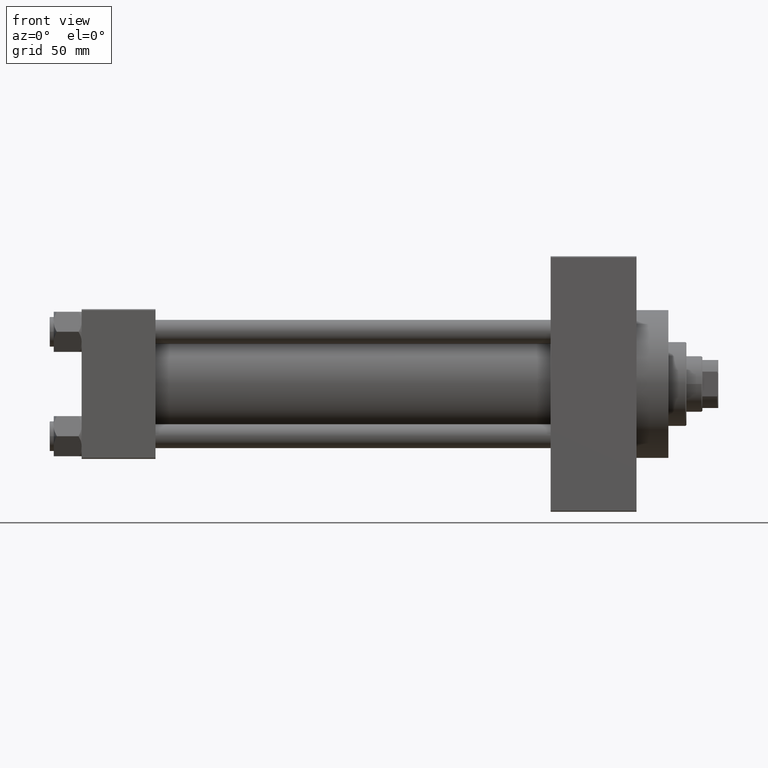
[diagram: clean part render]
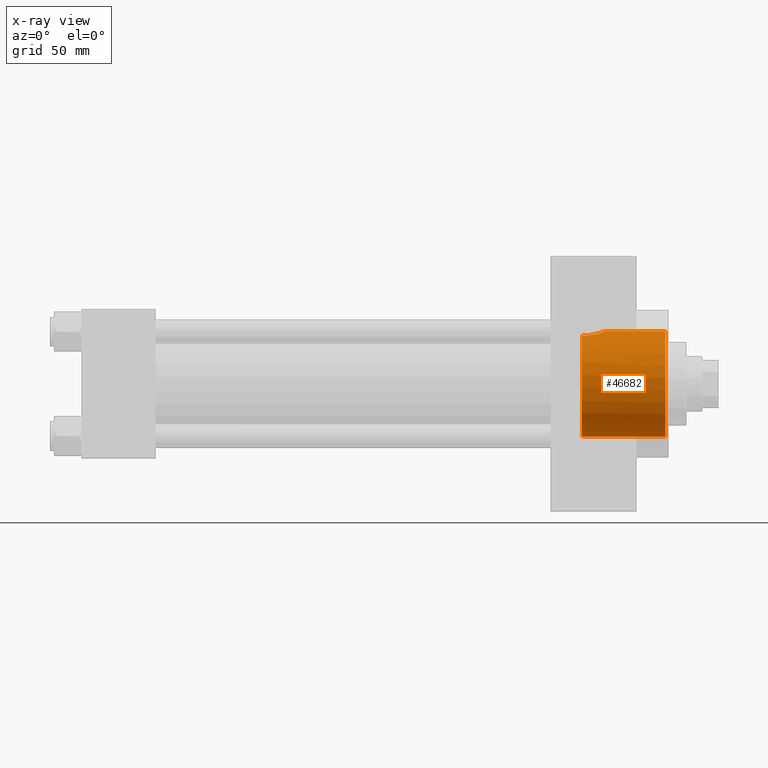
[diagram: x-ray — body ghosted, one internal face saturated and labeled with its STEP entity id]
A machine part, front view, then the same camera in x-ray: the body is ghosted and one INTERNAL B-rep face — a face not visible from any outside direction — is saturated and labeled: STEP entity #46682.
In plain terms, the highlighted cylindrical surface (partial cylindrical patch) has radius 26.5 mm, axis along (1, 0, 0).
Its self-contained STEP definition (entity closure, byte-faithful):
#172 = CARTESIAN_POINT ( 'NONE',  ( 261.6993435614956525, -3.985990130492275796, 26.20070574291655063 ) ) ;
#726 = EDGE_CURVE ( 'NONE', #26368, #26774, #10767, .T. ) ;
#742 = EDGE_CURVE ( 'NONE', #25491, #26368, #32243, .T. ) ;
#1116 = CARTESIAN_POINT ( 'NONE',  ( 253.7216423275558839, -10.36418010715237337, 24.38933169417625635 ) ) ;
#1570 = CARTESIAN_POINT ( 'NONE',  ( 250.7400000000000091, -10.40398000767014075, 24.37226292324945831 ) ) ;
#2968 = ORIENTED_EDGE ( 'NONE', *, *, #16962, .F. ) ;
#3252 = DIRECTION ( 'NONE',  ( 1.000000000000000000, 0.000000000000000000, 0.000000000000000000 ) ) ;
#3995 = CARTESIAN_POINT ( 'NONE',  ( 257.4947120380322758, -8.931495953537138988, 24.95025484238639635 ) ) ;
#4715 = CARTESIAN_POINT ( 'NONE',  ( 258.6874981071936190, -8.077221093107560534, 25.24030799844106809 ) ) ;
#4957 = CARTESIAN_POINT ( 'NONE',  ( 259.9981355541607400, -6.811571481472472378, 25.61680511670814653 ) ) ;
#6852 = CARTESIAN_POINT ( 'NONE',  ( 250.7400000000000091, 3.245314017740486554E-15, 26.50000000000000355 ) ) ;
#6888 = CARTESIAN_POINT ( 'NONE',  ( 262.1654842721633258, -2.575241489874368739, 26.37710048711162614 ) ) ;
#7043 = EDGE_LOOP ( 'NONE', ( #2968, #17547, #29726, #27399, #15140 ) ) ;
#7130 = DIRECTION ( 'NONE',  ( 1.000000000000000000, -0.000000000000000000, -0.000000000000000000 ) ) ;
#7210 = LINE ( 'NONE', #29475, #40919 ) ;
#7596 = CARTESIAN_POINT ( 'NONE',  ( 254.4459359432478323, -10.21777125531390595, 24.45211332338676868 ) ) ;
#8315 = CARTESIAN_POINT ( 'NONE',  ( 260.6508763872861323, -5.926808359427492512, 25.83050513016099714 ) ) ;
#8552 = CARTESIAN_POINT ( 'NONE',  ( 256.5335921408432682, -9.455792512420348572, 24.75606841526505875 ) ) ;
#8804 = CIRCLE ( 'NONE', #24858, 26.50000000000000355 ) ;
#10499 = DIRECTION ( 'NONE',  ( 0.000000000000000000, 0.000000000000000000, -1.000000000000000000 ) ) ;
#10767 = CIRCLE ( 'NONE', #46045, 26.50000000000000355 ) ;
#11202 = CARTESIAN_POINT ( 'NONE',  ( 250.7400000000000091, 0.000000000000000000, 0.000000000000000000 ) ) ;
#13437 = VERTEX_POINT ( 'NONE', #1570 ) ;
#14096 = CARTESIAN_POINT ( 'NONE',  ( 262.4011065554137190, -1.483758503940582729, 26.46850309434598358 ) ) ;
#15140 = ORIENTED_EDGE ( 'NONE', *, *, #22367, .F. ) ;
#15746 = CARTESIAN_POINT ( 'NONE',  ( 260.8553297434205547, -5.616857363200496778, 25.89992295911057951 ) ) ;
#16857 = B_SPLINE_CURVE_WITH_KNOTS ( 'NONE', 3,
 ( #17687, #32282, #14096, #6888, #32974, #21510, #172, #36804, #19341, #15746, #8315, #4957, #22450, #4715, #41380, #30584, #3995, #45004, #8552, #23168, #40425, #7596, #1116, #22689, #33939, #30349 ),
 .UNSPECIFIED., .F., .F.,
 ( 4, 2, 2, 2, 2, 2, 2, 2, 2, 2, 2, 2, 4 ),
 ( 0.01781170071191071069, 0.02003745927526320511, 0.02115033855693947140, 0.02226321783861573769, 0.02337609712029200398, 0.02448897640196826681, 0.02671473496532089653, 0.02782761424699726344, 0.02894049352867363728, 0.03005337281035000419, 0.03116625209202637456, 0.03339201065537927143, 0.03561776921873216484 ),
 .UNSPECIFIED. ) ;
#16962 = EDGE_CURVE ( 'NONE', #25491, #13437, #16857, .T. ) ;
#17047 = CARTESIAN_POINT ( 'NONE',  ( 292.5000000000000568, 0.000000000000000000, -26.50000000000000355 ) ) ;
#17547 = ORIENTED_EDGE ( 'NONE', *, *, #742, .T. ) ;
#17687 = CARTESIAN_POINT ( 'NONE',  ( 262.4800000000001319, 1.369086566889278633E-14, 26.50000000000006750 ) ) ;
#19341 = CARTESIAN_POINT ( 'NONE',  ( 261.2276638786153171, -4.981583166679955710, 26.02957788900646463 ) ) ;
#21194 = CARTESIAN_POINT ( 'NONE',  ( 250.7400000000000091, 0.000000000000000000, 0.000000000000000000 ) ) ;
#21510 = CARTESIAN_POINT ( 'NONE',  ( 261.8335546017134448, -3.642695553053305169, 26.25084325021122922 ) ) ;
#21867 = EDGE_CURVE ( 'NONE', #39571, #26774, #7210, .T. ) ;
#22216 = CYLINDRICAL_SURFACE ( 'NONE', #25383, 26.50000000000000355 ) ;
#22367 = EDGE_CURVE ( 'NONE', #13437, #39571, #8804, .T. ) ;
#22450 = CARTESIAN_POINT ( 'NONE',  ( 259.5076201536012377, -7.348534936426541542, 25.46581292754185100 ) ) ;
#22689 = CARTESIAN_POINT ( 'NONE',  ( 252.2451057705677044, -10.50334255171940256, 24.32972513250578928 ) ) ;
#23168 = CARTESIAN_POINT ( 'NONE',  ( 255.8600678267363833, -9.750145953289932166, 24.64162310621548713 ) ) ;
#23361 = CARTESIAN_POINT ( 'NONE',  ( 250.7400000000000091, 0.000000000000000000, -26.50000000000000355 ) ) ;
#24858 = AXIS2_PLACEMENT_3D ( 'NONE', #21194, #35779, #35312 ) ;
#25383 = AXIS2_PLACEMENT_3D ( 'NONE', #11202, #7130, #10499 ) ;
#25405 = DIRECTION ( 'NONE',  ( 1.000000000000000000, -0.000000000000000000, -0.000000000000000000 ) ) ;
#25491 = VERTEX_POINT ( 'NONE', #34858 ) ;
#25554 = FACE_OUTER_BOUND ( 'NONE', #7043, .T. ) ;
#26368 = VERTEX_POINT ( 'NONE', #41308 ) ;
#26774 = VERTEX_POINT ( 'NONE', #17047 ) ;
#27399 = ORIENTED_EDGE ( 'NONE', *, *, #21867, .F. ) ;
#28640 = DIRECTION ( 'NONE',  ( 1.000000000000000000, -0.000000000000000000, -0.000000000000000000 ) ) ;
#29475 = CARTESIAN_POINT ( 'NONE',  ( 250.7400000000000091, 0.000000000000000000, -26.50000000000000355 ) ) ;
#29726 = ORIENTED_EDGE ( 'NONE', *, *, #726, .T. ) ;
#30349 = CARTESIAN_POINT ( 'NONE',  ( 250.7400000000000091, -10.40398000767014075, 24.37226292324945831 ) ) ;
#30584 = CARTESIAN_POINT ( 'NONE',  ( 257.8022832347253939, -8.734885810676988882, 25.02004257437573997 ) ) ;
#31784 = DIRECTION ( 'NONE',  ( 0.000000000000000000, 0.000000000000000000, -1.000000000000000000 ) ) ;
#32243 = LINE ( 'NONE', #6852, #44481 ) ;
#32282 = CARTESIAN_POINT ( 'NONE',  ( 262.4800000000000182, -0.7466733969459828923, 26.50000000000002132 ) ) ;
#32471 = CARTESIAN_POINT ( 'NONE',  ( 292.5000000000000568, 0.000000000000000000, 0.000000000000000000 ) ) ;
#32974 = CARTESIAN_POINT ( 'NONE',  ( 262.0665133812163390, -2.938253791439176865, 26.33899517628734088 ) ) ;
#33939 = CARTESIAN_POINT ( 'NONE',  ( 251.4868983507927851, -10.49443499905854082, 24.33364968799253703 ) ) ;
#34858 = CARTESIAN_POINT ( 'NONE',  ( 262.4800000000001319, 1.369086566889278633E-14, 26.50000000000006750 ) ) ;
#35312 = DIRECTION ( 'NONE',  ( 0.000000000000000000, 0.000000000000000000, -1.000000000000000000 ) ) ;
#35779 = DIRECTION ( 'NONE',  ( 1.000000000000000000, 0.000000000000000000, 0.000000000000000000 ) ) ;
#36804 = CARTESIAN_POINT ( 'NONE',  ( 261.3963988635402984, -4.655434592126331594, 26.09007526830300350 ) ) ;
#39571 = VERTEX_POINT ( 'NONE', #23361 ) ;
#40425 = CARTESIAN_POINT ( 'NONE',  ( 255.5115735695663943, -9.881194972351268646, 24.58915736193082680 ) ) ;
#40919 = VECTOR ( 'NONE', #25405, 1000.000000000000000 ) ;
#41308 = CARTESIAN_POINT ( 'NONE',  ( 292.5000000000000568, 3.245314017740486554E-15, 26.50000000000000355 ) ) ;
#41380 = CARTESIAN_POINT ( 'NONE',  ( 258.3983008714430980, -8.308216825530738703, 25.16494175890556662 ) ) ;
#44481 = VECTOR ( 'NONE', #28640, 1000.000000000000000 ) ;
#45004 = CARTESIAN_POINT ( 'NONE',  ( 256.8603660912150417, -9.291949300782540888, 24.81826977973611648 ) ) ;
#46045 = AXIS2_PLACEMENT_3D ( 'NONE', #32471, #3252, #31784 ) ;
#46682 = ADVANCED_FACE ( 'NONE', ( #25554 ), #22216, .F. ) ;